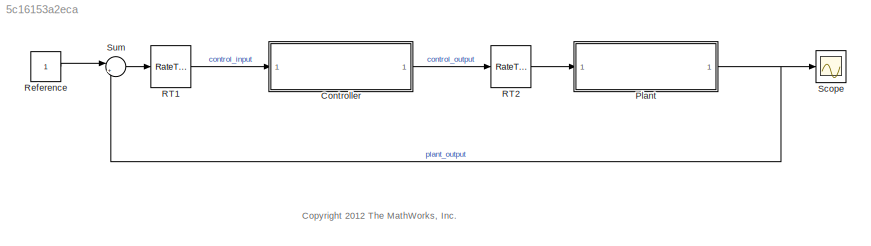
MODEL slx_5c16153a2eca
KIND model
CONFIG AbsTol = auto
CONFIG EnableMultiTasking = on
CONFIG FixedStep = auto
CONFIG MaxStep = auto
CONFIG MinStep = auto
CONFIG RelTol = 1e-3
CONFIG SampleTimeConstraint = Unconstrained
CONFIG SolverName = ode45
CONFIG StartTime = 0.0
CONFIG StopTime = 1
BLOCK [ModelReference] Controller
  ModelNameDialog = feedback_control
  ModelReferenceVersion = 1.39
BLOCK [ModelReference] Plant
  ModelNameDialog = feedback_plant
  ModelReferenceVersion = 1.21
BLOCK [RateTransition] RT1
BLOCK [RateTransition] RT2
BLOCK [Constant] Reference
BLOCK [Scope] Scope
  Floating = off
  NumInputPorts = 1
  ScopeSpecificationString = C++SS(StrPVP('Location','[188, 390, 512, 629]'),StrPVP('Open','off'),MxPVP('AxesTitles',54,'struct(''axes1'',''%<SignalLabel>'')'),MxPVP('ScopeGraphics',57,'struct(''FigureColor'',''[0.5 0.5 0.5]'',''AxesColor'',''[0 0 0]'',''AxesTickColor'',''[1 1 1]'',''LineColors'',''[1 1 0;1 0 1;0 1 1;1 0 0;0 1 0;0 0 1]'',''LineStyles'',''-|-|-|-|-|-'',''LineWidths'',''[0.5 0.5 0.5 0.5 0.5 0.5]'',''MarkerStyle...<+304ch>
BLOCK [Sum] Sum
  Inputs = |+-
ANNOTATION (root): <copyright redacted>
LINE Controller:1 -> RT2:1
NET Plant:1 -> Scope:1, Sum:2
LINE RT1:1 -> Controller:1
LINE RT2:1 -> Plant:1
LINE Reference:1 -> Sum:1
LINE Sum:1 -> RT1:1
note: NET lines group one-source signal fan-out (src -> all destinations, sorted); 1:1 wires keep LINE
